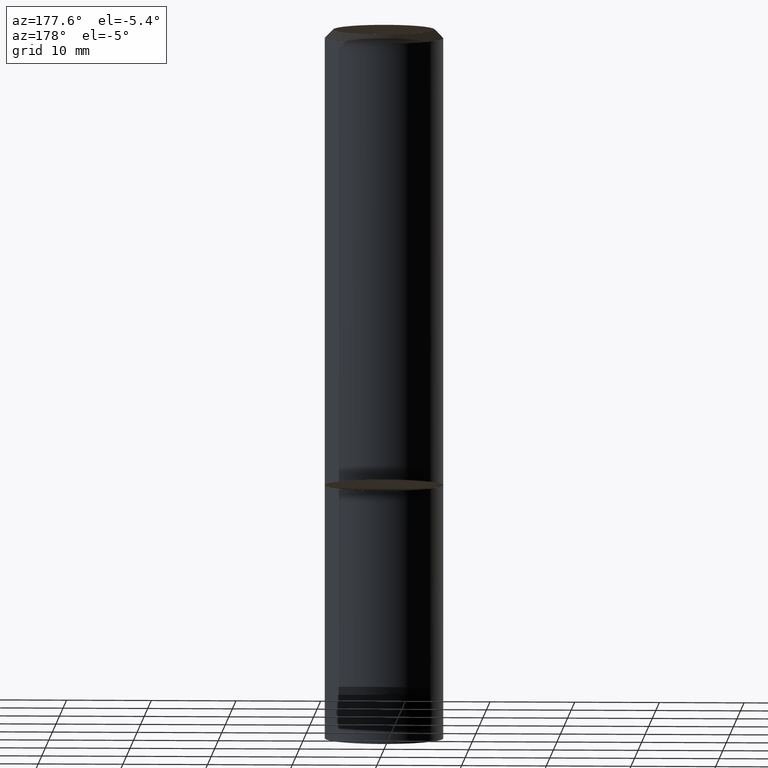
[diagram: clean part render]
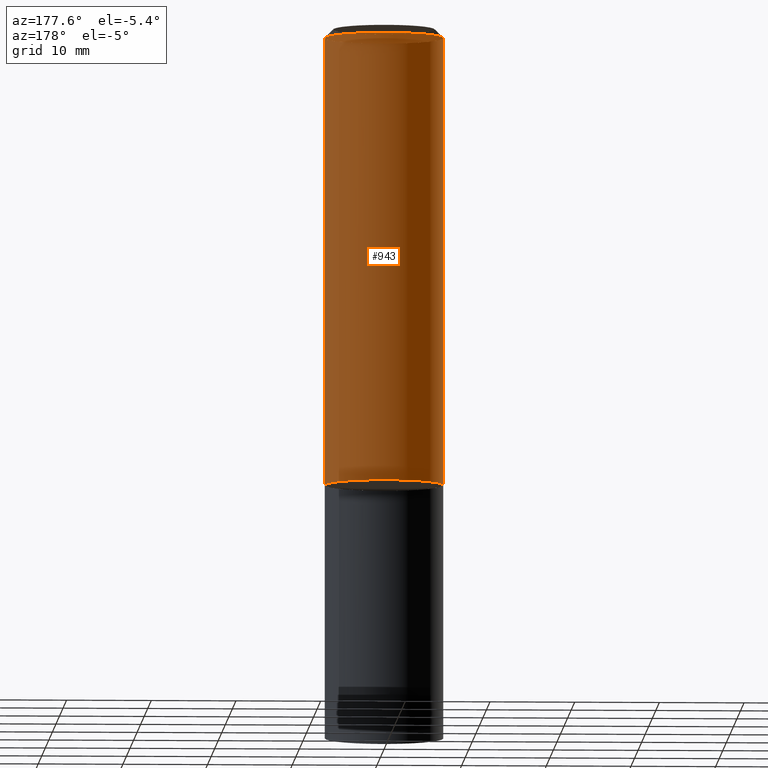
[diagram: same view with one face highlighted and labeled with its STEP entity id]
A machine part, auxiliary view. The second image highlights one B-rep face of the part: STEP entity #943.
In plain terms, the highlighted face is a freeform B-spline surface patch.
Its self-contained STEP definition (entity closure, byte-faithful):
#767=CARTESIAN_POINT('',(7.0,0.0,0.0));
#768=CARTESIAN_POINT('',(7.0,7.0,0.0));
#769=CARTESIAN_POINT('',(0.0,7.0,0.0));
#770=CARTESIAN_POINT('',(-7.0,7.0,0.0));
#771=CARTESIAN_POINT('',(-7.0,0.0,0.0));
#778=CARTESIAN_POINT('',(7.0,0.0,53.0));
#779=CARTESIAN_POINT('',(7.0,7.0,53.0));
#780=CARTESIAN_POINT('',(0.0,7.0,53.0));
#781=CARTESIAN_POINT('',(-7.0,7.0,53.0));
#782=CARTESIAN_POINT('',(-7.0,0.0,53.0));
#924=(
BOUNDED_SURFACE()
B_SPLINE_SURFACE(1,2,(
(#767,#768,#769,#770,#771),
(#778,#779,#780,#781,#782)
), .UNSPECIFIED.,.F.,.F.,.F.)
B_SPLINE_SURFACE_WITH_KNOTS((2,2),(3,2,3),(
0.0,1.0),(
0.0,0.5,1.0), .UNSPECIFIED.)
GEOMETRIC_REPRESENTATION_ITEM()
RATIONAL_B_SPLINE_SURFACE(((1.0,0.707106781187,1.0,0.707106781187,1.0),
(1.0,0.707106781187,1.0,0.707106781187,1.0)
))
REPRESENTATION_ITEM('')
SURFACE()
);
#925=(
BOUNDED_CURVE()
B_SPLINE_CURVE(2,(#771,#770,#769,#768,#767),.UNSPECIFIED.,.F.,.F.)
B_SPLINE_CURVE_WITH_KNOTS((3,2,3),
(0.0,0.5,1.0),.UNSPECIFIED.)
CURVE()
GEOMETRIC_REPRESENTATION_ITEM()
RATIONAL_B_SPLINE_CURVE((1.0,0.707106781187,1.0,0.707106781187,1.0))
REPRESENTATION_ITEM('')
);
#926=(
BOUNDED_CURVE()
B_SPLINE_CURVE(1,(#767,#778),.UNSPECIFIED.,.F.,.F.)
B_SPLINE_CURVE_WITH_KNOTS((2,2),
(0.0,1.0),.UNSPECIFIED.)
CURVE()
GEOMETRIC_REPRESENTATION_ITEM()
RATIONAL_B_SPLINE_CURVE((1.0,1.0))
REPRESENTATION_ITEM('')
);
#927=(
BOUNDED_CURVE()
B_SPLINE_CURVE(2,(#778,#779,#780,#781,#782),.UNSPECIFIED.,.F.,.F.)
B_SPLINE_CURVE_WITH_KNOTS((3,2,3),
(0.0,0.5,1.0),.UNSPECIFIED.)
CURVE()
GEOMETRIC_REPRESENTATION_ITEM()
RATIONAL_B_SPLINE_CURVE((1.0,0.707106781187,1.0,0.707106781187,1.0))
REPRESENTATION_ITEM('')
);
#928=(
BOUNDED_CURVE()
B_SPLINE_CURVE(1,(#782,#771),.UNSPECIFIED.,.F.,.F.)
B_SPLINE_CURVE_WITH_KNOTS((2,2),
(0.0,1.0),.UNSPECIFIED.)
CURVE()
GEOMETRIC_REPRESENTATION_ITEM()
RATIONAL_B_SPLINE_CURVE((1.0,1.0))
REPRESENTATION_ITEM('')
);
#929=VERTEX_POINT('',#767);
#930=VERTEX_POINT('',#771);
#931=VERTEX_POINT('',#778);
#932=VERTEX_POINT('',#782);
#933=EDGE_CURVE('',#930,#929,#925,.T.);
#934=EDGE_CURVE('',#929,#931,#926,.T.);
#935=EDGE_CURVE('',#931,#932,#927,.T.);
#936=EDGE_CURVE('',#932,#930,#928,.T.);
#937=ORIENTED_EDGE('',*,*,#933,.T.);
#938=ORIENTED_EDGE('',*,*,#934,.T.);
#939=ORIENTED_EDGE('',*,*,#935,.T.);
#940=ORIENTED_EDGE('',*,*,#936,.T.);
#941=EDGE_LOOP('',(#937,#938,#939,#940));
#942=FACE_OUTER_BOUND('',#941,.T.);
#943=ADVANCED_FACE('',(#942),#924,.T.);